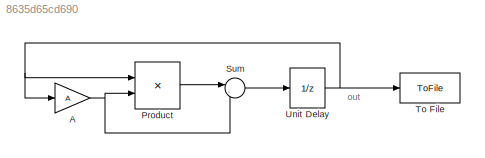
MODEL slx_8635d65cd690
KIND model
CONFIG AbsTol = auto
CONFIG EnableMultiTasking = on
CONFIG FixedStep = 1
CONFIG MaxStep = auto
CONFIG MinStep = auto
CONFIG RelTol = 1e-3
CONFIG SampleTimeConstraint = Unconstrained
CONFIG SolverName = ode45
CONFIG StartTime = 0.0
CONFIG StopTime = 10.0
BLOCK [Gain] A
  Gain = A
  OutDataTypeStr = Inherit: Same as input
  ParamDataTypeStr = Inherit: Same as input
  SaturateOnIntegerOverflow = on
BLOCK [Product] Product
  OutDataTypeStr = Inherit: Same as first input
  Ports = [2, 1]
  SaturateOnIntegerOverflow = on
BLOCK [Sum] Sum
  Inputs = |-+
  Ports = [2, 1]
  SaturateOnIntegerOverflow = on
BLOCK [ToFile] To File
  Filename = out.mat
  MatrixName = out
  Ports = [1]
  SampleTime = 0.01
BLOCK [UnitDelay] Unit Delay
  InitialCondition = 0.1
  SampleTime = 0.01
ANNOTATION (root): out
NET A:1 -> Product:2, Sum:2
LINE Product:1 -> Sum:1
LINE Sum:1 -> Unit Delay:1
NET Unit Delay:1 -> A:1, Product:1, To File:1
note: NET lines group one-source signal fan-out (src -> all destinations, sorted); 1:1 wires keep LINE
